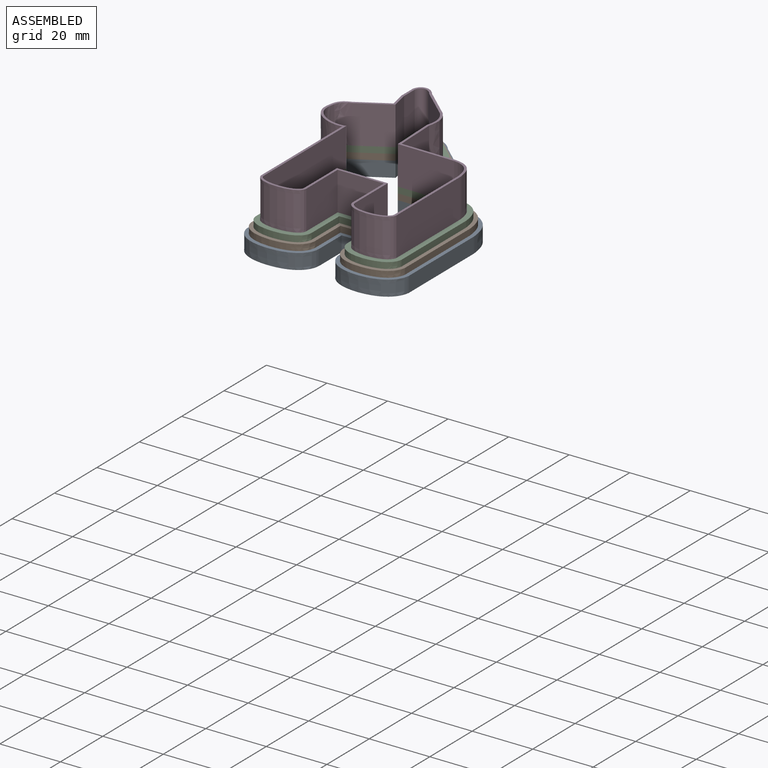
[diagram: assembled view]
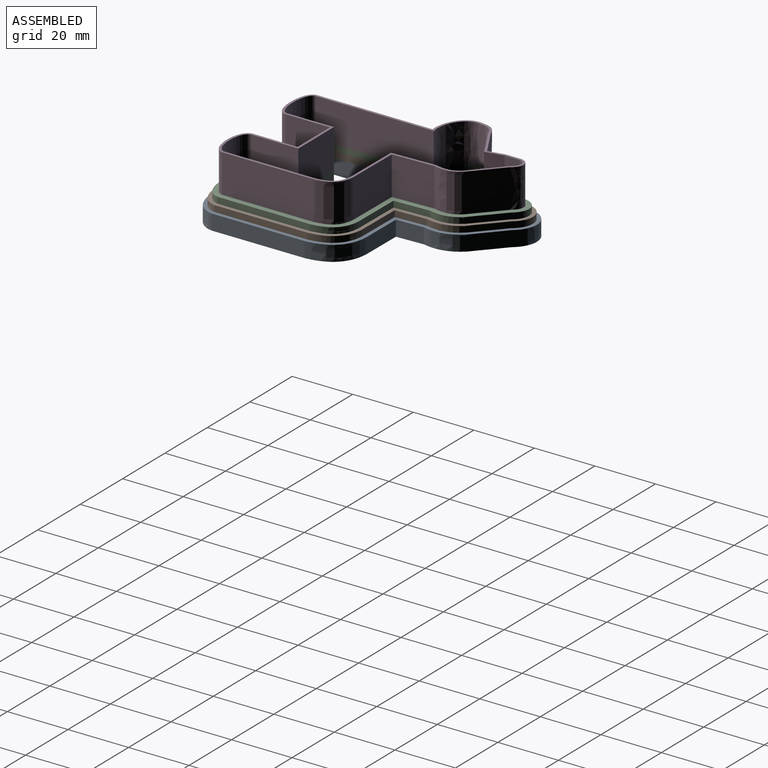
[diagram: assembled view, second angle]
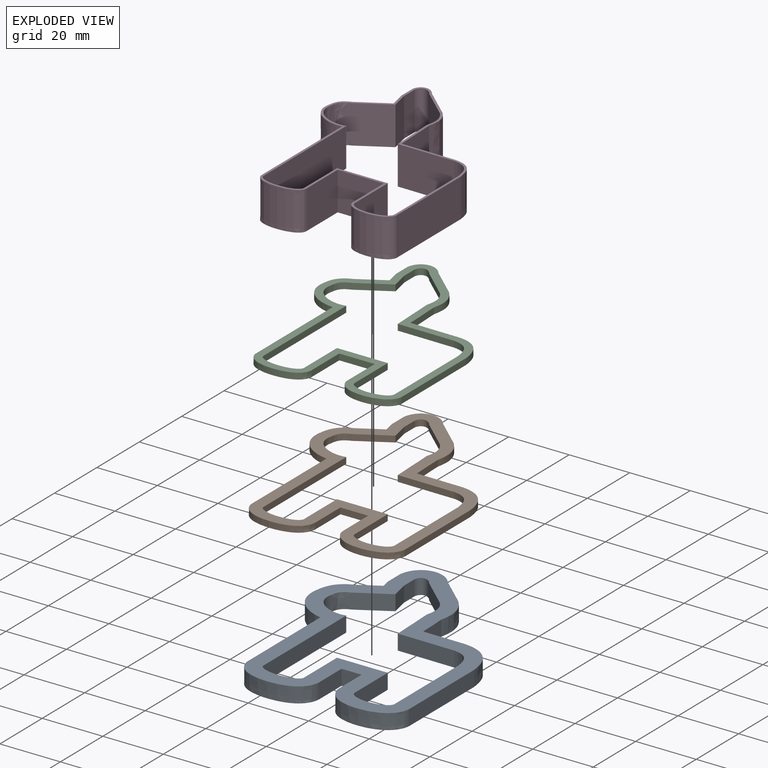
[diagram: exploded view]
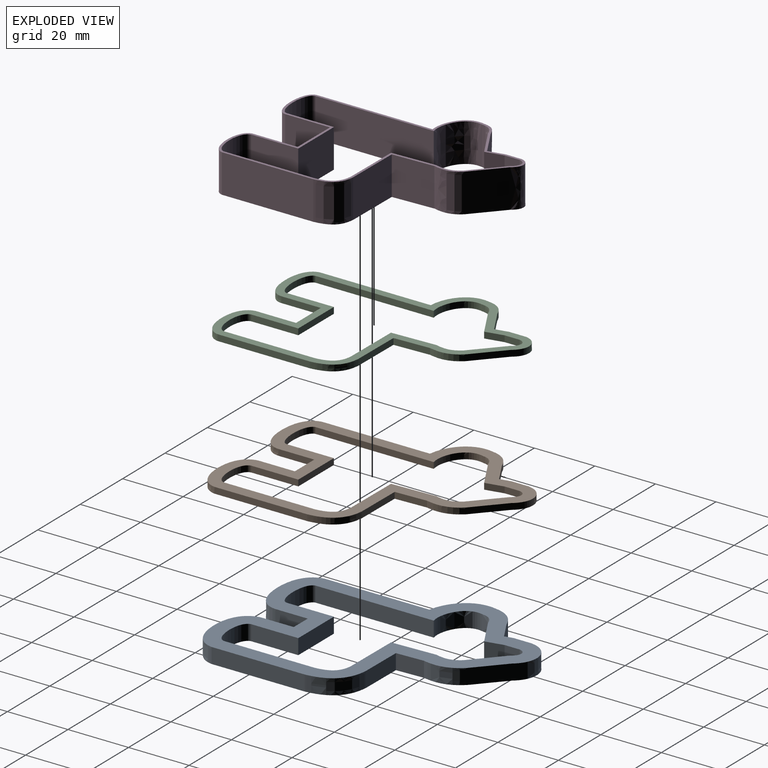
[diagram: exploded view, second angle]
ASSEMBLY  parts=4 mates=3
PART A: 38 faces, bbox 64.5x83.7x5.1 mm
  f0: plane 83.7x64.47mm, normal (0,0,1), area 1402.9mm2, adj f2,f3,f4,f5,f6,f7,f8,f9
  f1: plane 83.7x64.47mm, normal (0,0,-1), area 1402.9mm2, adj f2,f3,f4,f5,f6,f7,f8,f9
  f2: plane 14.1x5.08mm, normal (0.01,1,0), area 71.6mm2, adj f0,f1,f3,f19
  f3: plane 9.02x5.08mm, normal (1,0.04,0), area 45.9mm2, adj f0,f1,f2,f4
  f4: extruded ~12.14x5.08mm, area 66.1mm2, adj f0,f1,f3,f5
  f5: plane 9.36x8.4mm, normal (0.67,0.74,0), area 63.9mm2, adj f0,f1,f4,f6
  f6: extruded ~13.64x6.41mm, area 92mm2, adj f0,f1,f5,f7
  f7: plane 6.13x5.08mm, normal (-1,0,0), area 31.1mm2, adj f0,f1,f6,f8
  f8: plane 5.08x2.78mm, normal (-0.98,-0.21,0), area 14.4mm2, adj f0,f1,f7,f9
  f9: plane 6.66x5.08mm, normal (-0.5,0.87,0), area 39mm2, adj f0,f1,f8,f10
  f10: extruded ~8.41x6.61mm, area 57.6mm2, adj f0,f1,f9,f11
  f11: extruded ~14.12x11.08mm, area 100.9mm2, adj f0,f1,f10,f12
  f12: plane 34.59x5.08mm, normal (-1,0,0), area 175.7mm2, adj f0,f1,f11,f13
  f13: extruded ~23.59x7.6mm, area 157mm2, adj f0,f1,f12,f14
  f14: plane 10.55x5.08mm, normal (1,0,0), area 53.6mm2, adj f0,f1,f13,f15
  f15: plane 6.62x5.08mm, normal (0,-1,0), area 33.6mm2, adj f0,f1,f14,f16
  f16: plane 10.72x5.08mm, normal (-1,0,0), area 54.4mm2, adj f0,f1,f15,f17
  f17: extruded ~23.17x7.64mm, area 157.1mm2, adj f0,f1,f16,f18
  f18: plane 30.8x5.08mm, normal (1,0,0), area 156.5mm2, adj f0,f1,f17,f19
  f19: extruded ~12.25x11.26mm, area 93.9mm2, adj f0,f1,f2,f18
  f20: plane 18.74x5.08mm, normal (-0.01,-1,0), area 95.2mm2, adj f0,f1,f21,f37
  f21: plane 14.55x5.08mm, normal (-1,-0.04,0), area 73.9mm2, adj f0,f1,f20,f22
  f22: extruded ~8.11x5.08mm, area 43.9mm2, adj f0,f1,f21,f23
  f23: plane 9.51x8.53mm, normal (-0.67,-0.74,0), area 64.9mm2, adj f0,f1,f22,f24
  f24: extruded ~5.08x4.76mm, area 32.9mm2, adj f0,f1,f23,f25
  f25: plane 5.08x5.04mm, normal (1,0,0), area 25.6mm2, adj f0,f1,f24,f26
  f26: plane 5.87x5.08mm, normal (0.98,0.21,0), area 30.5mm2, adj f0,f1,f25,f27
  f27: plane 10.21x5.87mm, normal (0.5,-0.87,0), area 59.8mm2, adj f0,f1,f26,f28
  f28: extruded ~5.08x4.62mm, area 32.6mm2, adj f0,f1,f27,f29
  f29: extruded ~11.08x8.55mm, area 82.3mm2, adj f0,f1,f28,f30
  f30: plane 39.1x5.08mm, normal (1,0,0), area 198.6mm2, adj f0,f1,f29,f31
  f31: extruded ~13.43x5.08mm, area 78.1mm2, adj f0,f1,f30,f32
  f32: plane 15.53x5.08mm, normal (-1,0,0), area 78.9mm2, adj f0,f1,f31,f33
  f33: plane 16.78x5.08mm, normal (0,1,0), area 85.3mm2, adj f0,f1,f32,f34
  f34: plane 15.53x5.08mm, normal (1,0,0), area 78.9mm2, adj f0,f1,f33,f35
  f35: extruded ~13.01x5.08mm, area 77.1mm2, adj f0,f1,f34,f36
  f36: plane 30.07x5.08mm, normal (-1,0,0), area 152.8mm2, adj f0,f1,f35,f37
  f37: extruded ~7.41x6.43mm, area 55.6mm2, adj f0,f1,f20,f36
PART B: 38 faces, bbox 62.9x82.2x3 mm
  f0: plane 82.15x62.91mm, normal (0,0,1), area 1041.4mm2, adj f2,f3,f4,f5,f6,f7,f8,f9
  f1: plane 82.15x62.91mm, normal (0,0,-1), area 1041.4mm2, adj f2,f3,f4,f5,f6,f7,f8,f9
  f2: plane 15.26x2.03mm, normal (0.01,1,0), area 31mm2, adj f0,f1,f3,f19
  f3: plane 10.4x2.03mm, normal (1,0.04,0), area 21.1mm2, adj f0,f1,f2,f4
  f4: extruded ~11.14x2.97mm, area 24.2mm2, adj f0,f1,f3,f5
  f5: plane 9.39x8.42mm, normal (0.67,0.74,0), area 25.6mm2, adj f0,f1,f4,f6
  f6: extruded ~11.43x5.28mm, area 31.2mm2, adj f0,f1,f5,f7
  f7: plane 5.86x2.03mm, normal (-1,0,0), area 11.9mm2, adj f0,f1,f6,f8
  f8: plane 3.55x2.03mm, normal (-0.98,-0.21,0), area 7.4mm2, adj f0,f1,f7,f9
  f9: plane 7.54x4.34mm, normal (-0.5,0.87,0), area 17.7mm2, adj f0,f1,f8,f10
  f10: extruded ~7.46x5.9mm, area 20.5mm2, adj f0,f1,f9,f11
  f11: extruded ~12.84x11.08mm, area 38.5mm2, adj f0,f1,f10,f12
  f12: plane 35.54x2.03mm, normal (-1,0,0), area 72.2mm2, adj f0,f1,f11,f13
  f13: extruded ~21.05x6.35mm, area 54.2mm2, adj f0,f1,f12,f14
  f14: plane 11.79x2.03mm, normal (1,0,0), area 24mm2, adj f0,f1,f13,f15
  f15: plane 9.16x2.03mm, normal (0,-1,0), area 18.6mm2, adj f0,f1,f14,f16
  f16: plane 11.92x2.03mm, normal (-1,0,0), area 24.2mm2, adj f0,f1,f15,f17
  f17: extruded ~20.63x6.44mm, area 54.1mm2, adj f0,f1,f16,f18
  f18: plane 30.62x2.03mm, normal (1,0,0), area 62.2mm2, adj f0,f1,f17,f19
  f19: extruded ~11.04x10.06mm, area 33.7mm2, adj f0,f1,f2,f18
  f20: plane 18.74x2.03mm, normal (-0.01,-1,0), area 38.1mm2, adj f0,f1,f21,f37
  f21: plane 14.55x2.03mm, normal (-1,-0.04,0), area 29.6mm2, adj f0,f1,f20,f22
  f22: extruded ~8.11x2.03mm, area 17.5mm2, adj f0,f1,f21,f23
  f23: plane 9.51x8.53mm, normal (-0.67,-0.74,0), area 26mm2, adj f0,f1,f22,f24
  f24: extruded ~4.76x2.03mm, area 13.1mm2, adj f0,f1,f23,f25
  f25: plane 5.04x2.03mm, normal (1,0,0), area 10.2mm2, adj f0,f1,f24,f26
  f26: plane 5.87x2.03mm, normal (0.98,0.21,0), area 12.2mm2, adj f0,f1,f25,f27
  f27: plane 10.21x5.87mm, normal (0.5,-0.87,0), area 23.9mm2, adj f0,f1,f26,f28
  f28: extruded ~4.62x3.78mm, area 13.1mm2, adj f0,f1,f27,f29
  f29: extruded ~11.08x8.55mm, area 32.9mm2, adj f0,f1,f28,f30
  f30: plane 39.1x2.03mm, normal (1,0,0), area 79.5mm2, adj f0,f1,f29,f31
  f31: extruded ~13.43x2.62mm, area 31.2mm2, adj f0,f1,f30,f32
  f32: plane 15.53x2.03mm, normal (-1,0,0), area 31.5mm2, adj f0,f1,f31,f33
  f33: plane 16.78x2.03mm, normal (0,1,0), area 34.1mm2, adj f0,f1,f32,f34
  f34: plane 15.53x2.03mm, normal (1,0,0), area 31.5mm2, adj f0,f1,f33,f35
  f35: extruded ~13.01x2.83mm, area 30.9mm2, adj f0,f1,f34,f36
  f36: plane 30.07x2.03mm, normal (-1,0,0), area 61.1mm2, adj f0,f1,f35,f37
  f37: extruded ~7.41x6.43mm, area 22.2mm2, adj f0,f1,f20,f36
PART C: 38 faces, bbox 59.7x78.9x2.4 mm
  f0: plane 78.94x59.7mm, normal (0,0,1), area 687.3mm2, adj f2,f3,f4,f5,f6,f7,f8,f9
  f1: plane 78.94x59.7mm, normal (0,0,-1), area 687.3mm2, adj f2,f3,f4,f5,f6,f7,f8,f9
  f2: plane 16.42x2.03mm, normal (0.01,1,0), area 33.4mm2, adj f0,f1,f3,f19
  f3: plane 11.78x2.03mm, normal (1,0.04,0), area 24mm2, adj f0,f1,f2,f4
  f4: extruded ~10.13x2.61mm, area 22mm2, adj f0,f1,f3,f5
  f5: plane 9.42x8.45mm, normal (0.67,0.74,0), area 25.7mm2, adj f0,f1,f4,f6
  f6: extruded ~9.21x4.15mm, area 25.1mm2, adj f0,f1,f5,f7
  f7: plane 5.58x2.03mm, normal (-1,0,0), area 11.3mm2, adj f0,f1,f6,f8
  f8: plane 4.33x2.03mm, normal (-0.98,-0.21,0), area 9mm2, adj f0,f1,f7,f9
  f9: plane 8.43x4.85mm, normal (-0.5,0.87,0), area 19.8mm2, adj f0,f1,f8,f10
  f10: extruded ~6.51x5.2mm, area 18mm2, adj f0,f1,f9,f11
  f11: extruded ~11.48x11.08mm, area 36.6mm2, adj f0,f1,f10,f12
  f12: plane 36.58x2.03mm, normal (-1,0,0), area 74.3mm2, adj f0,f1,f11,f13
  f13: extruded ~18.51x5.11mm, area 47mm2, adj f0,f1,f12,f14
  f14: plane 13.04x2.03mm, normal (1,0,0), area 26.5mm2, adj f0,f1,f13,f15
  f15: plane 11.7x2.03mm, normal (0,-1,0), area 23.8mm2, adj f0,f1,f14,f16
  f16: plane 13.12x2.03mm, normal (-1,0,0), area 26.7mm2, adj f0,f1,f15,f17
  f17: extruded ~18.09x5.24mm, area 46.7mm2, adj f0,f1,f16,f18
  f18: plane 30.44x2.03mm, normal (1,0,0), area 61.8mm2, adj f0,f1,f17,f19
  f19: extruded ~9.83x8.85mm, area 29.8mm2, adj f0,f1,f2,f18
  f20: plane 18.74x2.03mm, normal (-0.01,-1,0), area 38.1mm2, adj f0,f1,f21,f37
  f21: plane 14.55x2.03mm, normal (-1,-0.04,0), area 29.6mm2, adj f0,f1,f20,f22
  f22: extruded ~8.11x2.03mm, area 17.5mm2, adj f0,f1,f21,f23
  f23: plane 9.51x8.53mm, normal (-0.67,-0.74,0), area 26mm2, adj f0,f1,f22,f24
  f24: extruded ~4.76x2.03mm, area 13.1mm2, adj f0,f1,f23,f25
  f25: plane 5.04x2.03mm, normal (1,0,0), area 10.2mm2, adj f0,f1,f24,f26
  f26: plane 5.87x2.03mm, normal (0.98,0.21,0), area 12.2mm2, adj f0,f1,f25,f27
  f27: plane 10.21x5.87mm, normal (0.5,-0.87,0), area 23.9mm2, adj f0,f1,f26,f28
  f28: extruded ~4.62x3.78mm, area 13.1mm2, adj f0,f1,f27,f29
  f29: extruded ~11.08x8.55mm, area 32.9mm2, adj f0,f1,f28,f30
  f30: plane 39.1x2.03mm, normal (1,0,0), area 79.5mm2, adj f0,f1,f29,f31
  f31: extruded ~13.43x2.62mm, area 31.2mm2, adj f0,f1,f30,f32
  f32: plane 15.53x2.03mm, normal (-1,0,0), area 31.5mm2, adj f0,f1,f31,f33
  f33: plane 16.78x2.03mm, normal (0,1,0), area 34.1mm2, adj f0,f1,f32,f34
  f34: plane 15.53x2.03mm, normal (1,0,0), area 31.5mm2, adj f0,f1,f33,f35
  f35: extruded ~13.01x2.83mm, area 30.9mm2, adj f0,f1,f34,f36
  f36: plane 30.07x2.03mm, normal (-1,0,0), area 61.1mm2, adj f0,f1,f35,f37
  f37: extruded ~7.41x6.43mm, area 22.2mm2, adj f0,f1,f20,f36
PART D: 38 faces, bbox 55.8x75.4x12.7 mm
  f0: plane 75.38x55.84mm, normal (0,0,1), area 203.2mm2, adj f2,f3,f4,f5,f6,f7,f8,f9
  f1: plane 75.38x55.84mm, normal (0,0,-1), area 203.2mm2, adj f2,f3,f4,f5,f6,f7,f8,f9
  f2: plane 18.05x12.7mm, normal (0.01,1,0), area 229.2mm2, adj f0,f1,f3,f19
  f3: plane 13.72x12.7mm, normal (1,0.04,0), area 174.3mm2, adj f0,f1,f2,f4
  f4: extruded ~12.7x8.72mm, area 118mm2, adj f0,f1,f3,f5
  f5: plane 12.7x9.48mm, normal (0.67,0.74,0), area 161.7mm2, adj f0,f1,f4,f6
  f6: extruded ~12.7x6.1mm, area 104.5mm2, adj f0,f1,f5,f7
  f7: plane 12.7x5.2mm, normal (-1,0,0), area 66mm2, adj f0,f1,f6,f8
  f8: plane 12.7x5.41mm, normal (-0.98,-0.21,0), area 70.3mm2, adj f0,f1,f7,f9
  f9: plane 12.7x9.68mm, normal (-0.5,0.87,0), area 141.8mm2, adj f0,f1,f8,f10
  f10: extruded ~12.7x5.18mm, area 91mm2, adj f0,f1,f9,f11
  f11: extruded ~12.7x11.08mm, area 212.5mm2, adj f0,f1,f10,f12
  f12: plane 38.26x12.7mm, normal (-1,0,0), area 485.9mm2, adj f0,f1,f11,f13
  f13: extruded ~14.95x12.7mm, area 224.3mm2, adj f0,f1,f12,f14
  f14: plane 14.78x12.7mm, normal (1,0,0), area 187.7mm2, adj f0,f1,f13,f15
  f15: plane 15.26x12.7mm, normal (0,-1,0), area 193.8mm2, adj f0,f1,f14,f16
  f16: plane 14.8x12.7mm, normal (-1,0,0), area 188mm2, adj f0,f1,f15,f17
  f17: extruded ~14.53x12.7mm, area 221.8mm2, adj f0,f1,f16,f18
  f18: plane 30.18x12.7mm, normal (1,0,0), area 383.3mm2, adj f0,f1,f17,f19
  f19: extruded ~12.7x8.14mm, area 153.3mm2, adj f0,f1,f2,f18
  f20: plane 18.74x12.7mm, normal (-0.01,-1,0), area 238mm2, adj f0,f1,f21,f37
  f21: plane 14.55x12.7mm, normal (-1,-0.04,0), area 184.9mm2, adj f0,f1,f20,f22
  f22: extruded ~12.7x8.11mm, area 109.7mm2, adj f0,f1,f21,f23
  f23: plane 12.7x9.51mm, normal (-0.67,-0.74,0), area 162.3mm2, adj f0,f1,f22,f24
  f24: extruded ~12.7x4.76mm, area 82.1mm2, adj f0,f1,f23,f25
  f25: plane 12.7x5.04mm, normal (1,0,0), area 63.9mm2, adj f0,f1,f24,f26
  f26: plane 12.7x5.87mm, normal (0.98,0.21,0), area 76.3mm2, adj f0,f1,f25,f27
  f27: plane 12.7x10.21mm, normal (0.5,-0.87,0), area 149.6mm2, adj f0,f1,f26,f28
  f28: extruded ~12.7x4.62mm, area 81.6mm2, adj f0,f1,f27,f29
  f29: extruded ~12.7x11.08mm, area 205.7mm2, adj f0,f1,f28,f30
  f30: plane 39.1x12.7mm, normal (1,0,0), area 496.6mm2, adj f0,f1,f29,f31
  f31: extruded ~13.43x12.7mm, area 195.2mm2, adj f0,f1,f30,f32
  f32: plane 15.53x12.7mm, normal (-1,0,0), area 197.2mm2, adj f0,f1,f31,f33
  f33: plane 16.78x12.7mm, normal (0,1,0), area 213.2mm2, adj f0,f1,f32,f34
  f34: plane 15.53x12.7mm, normal (1,0,0), area 197.2mm2, adj f0,f1,f33,f35
  f35: extruded ~13.01x12.7mm, area 192.8mm2, adj f0,f1,f34,f36
  f36: plane 30.07x12.7mm, normal (-1,0,0), area 381.9mm2, adj f0,f1,f35,f37
  f37: extruded ~12.7x7.41mm, area 139mm2, adj f0,f1,f20,f36
PLACE A t=(152.58,5.94,-7.11)mm
PLACE B t=(188.89,76.71,-2.03)mm
PLACE C at identity
PLACE D t=(86.6,29.33,2.03)mm
MATE fastened B.f0 <-> C.f1  axis (0,0,1) through (57.89,29.33,0)mm
MATE fastened D.f1 <-> C.f0  axis (0,0,1) through (57.89,29.33,2.03)mm
MATE fastened B.f1 <-> A.f0  axis (0,0,1) through (57.89,29.33,-2.03)mm
